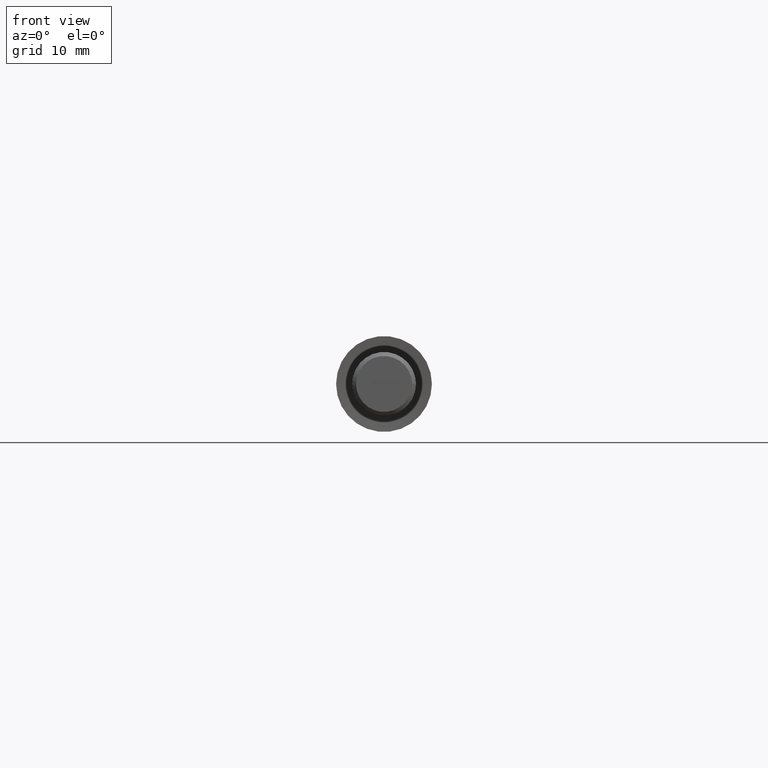
[diagram: clean part render]
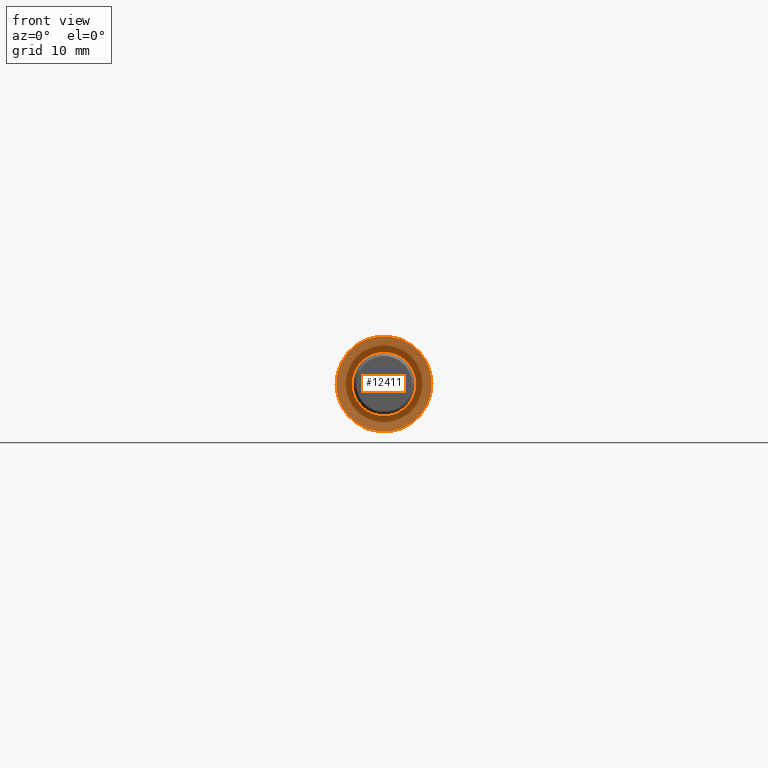
[diagram: same view with one face highlighted and labeled with its STEP entity id]
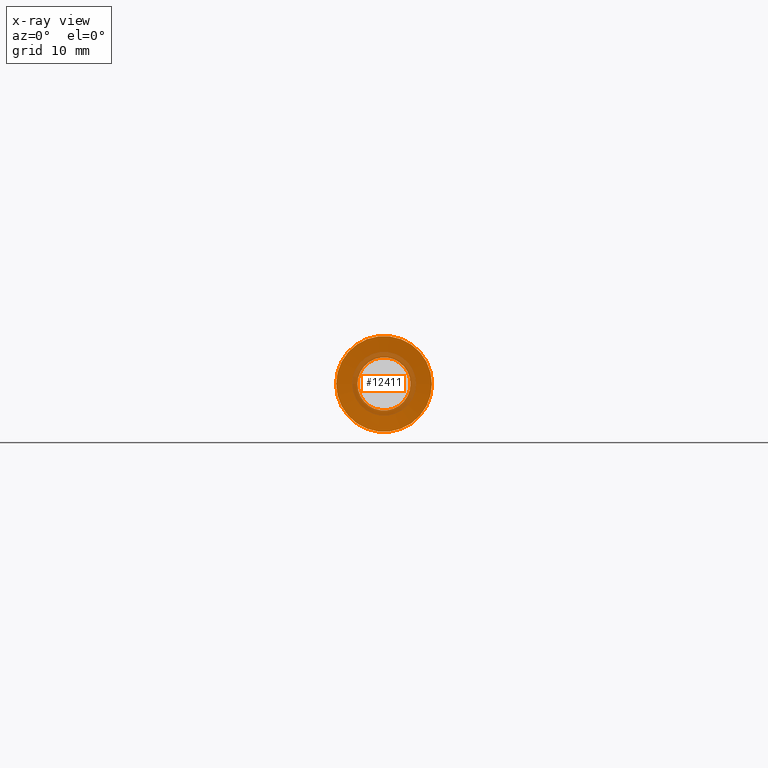
[diagram: x-ray of the same camera — body ghosted, the highlighted face saturated]
A machine part, front view. The second image highlights one B-rep face of the part: STEP entity #12411.
The next image is the same camera in x-ray: the body ghosted, the highlighted face saturated — about 20% of this face is hidden behind the body in this view.
In plain terms, the highlighted conical surface has half-angle 85 deg.
Its self-contained STEP definition (entity closure, byte-faithful):
#31 = CARTESIAN_POINT ( 'NONE',  ( 6.000000000000009770, 1.283953296258159242E-32, 0.000000000000000000 ) ) ;
#870 = CARTESIAN_POINT ( 'NONE',  ( 1.599924287923588925E-31, 0.2344633132870081738, 0.000000000000000000 ) ) ;
#1293 = CIRCLE ( 'NONE', #11278, 6.000000000000009770 ) ;
#1323 = AXIS2_PLACEMENT_3D ( 'NONE', #2206, #11771, #6392 ) ;
#1961 = DIRECTION ( 'NONE',  ( 2.139922160430262325E-33, -1.000000000000000000, -0.000000000000000000 ) ) ;
#2206 = CARTESIAN_POINT ( 'NONE',  ( 1.599924287923588925E-31, 0.2344633132870081738, 0.000000000000000000 ) ) ;
#2442 = ORIENTED_EDGE ( 'NONE', *, *, #10144, .T. ) ;
#4385 = ORIENTED_EDGE ( 'NONE', *, *, #5258, .F. ) ;
#4838 = CONICAL_SURFACE ( 'NONE', #6028, 3.320072066050799187, 1.483529864195179737 ) ;
#5258 = EDGE_CURVE ( 'NONE', #5432, #5432, #7270, .T. ) ;
#5432 = VERTEX_POINT ( 'NONE', #7434 ) ;
#5616 = DIRECTION ( 'NONE',  ( 2.139922160430262325E-33, -1.000000000000000000, -0.000000000000000000 ) ) ;
#6028 = AXIS2_PLACEMENT_3D ( 'NONE', #870, #1961, #7273 ) ;
#6392 = DIRECTION ( 'NONE',  ( 1.000000000000000000, 0.000000000000000000, 0.000000000000000000 ) ) ;
#7270 = CIRCLE ( 'NONE', #1323, 3.320072066050799187 ) ;
#7273 = DIRECTION ( 'NONE',  ( 1.000000000000000000, 0.000000000000000000, 0.000000000000000000 ) ) ;
#7434 = CARTESIAN_POINT ( 'NONE',  ( 3.320072066050799187, 0.2344633132870081738, 0.000000000000000000 ) ) ;
#9309 = FACE_BOUND ( 'NONE', #12605, .T. ) ;
#9668 = CARTESIAN_POINT ( 'NONE',  ( 1.604941620322696398E-31, 0.000000000000000000, 0.000000000000000000 ) ) ;
#9760 = DIRECTION ( 'NONE',  ( 1.000000000000000000, 2.139922160430261983E-33, 0.000000000000000000 ) ) ;
#9966 = FACE_OUTER_BOUND ( 'NONE', #11460, .T. ) ;
#10144 = EDGE_CURVE ( 'NONE', #12668, #12668, #1293, .T. ) ;
#11278 = AXIS2_PLACEMENT_3D ( 'NONE', #9668, #5616, #9760 ) ;
#11460 = EDGE_LOOP ( 'NONE', ( #2442 ) ) ;
#11771 = DIRECTION ( 'NONE',  ( 2.139922160430262325E-33, -1.000000000000000000, -0.000000000000000000 ) ) ;
#12411 = ADVANCED_FACE ( 'NONE', ( #9966, #9309 ), #4838, .F. ) ;
#12605 = EDGE_LOOP ( 'NONE', ( #4385 ) ) ;
#12668 = VERTEX_POINT ( 'NONE', #31 ) ;